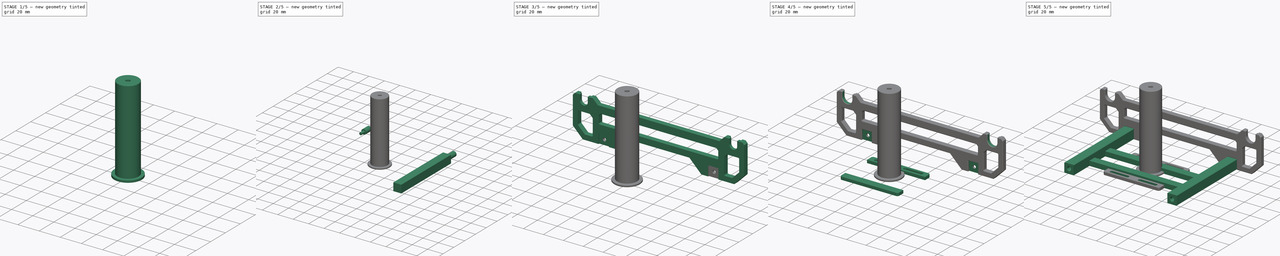
[diagram: build sequence overview — one tinted view per stage of 5, left to right]
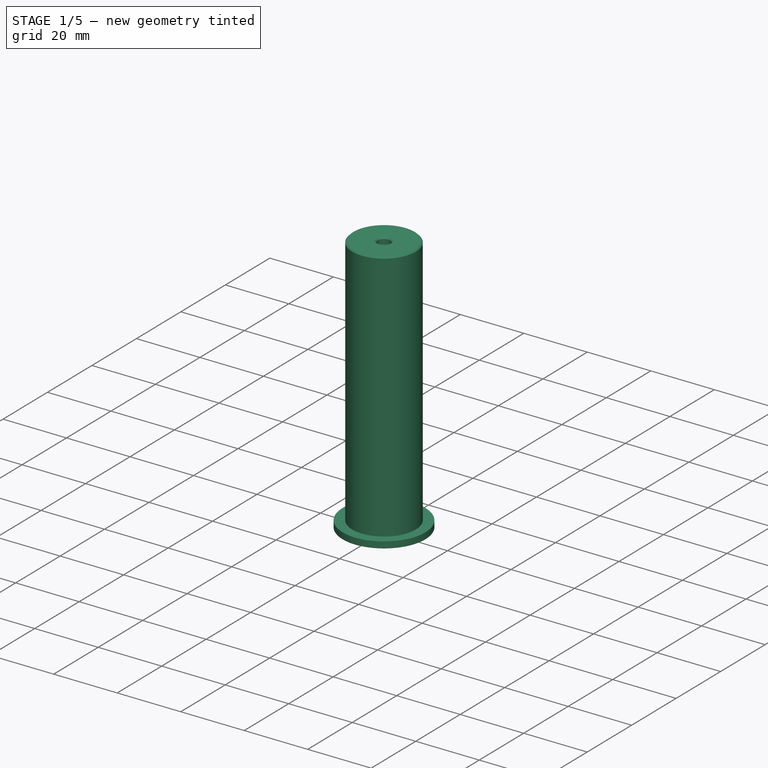
[diagram: stage 1 of 5 — iso view after this stage's code; geometry added in this stage tinted green]
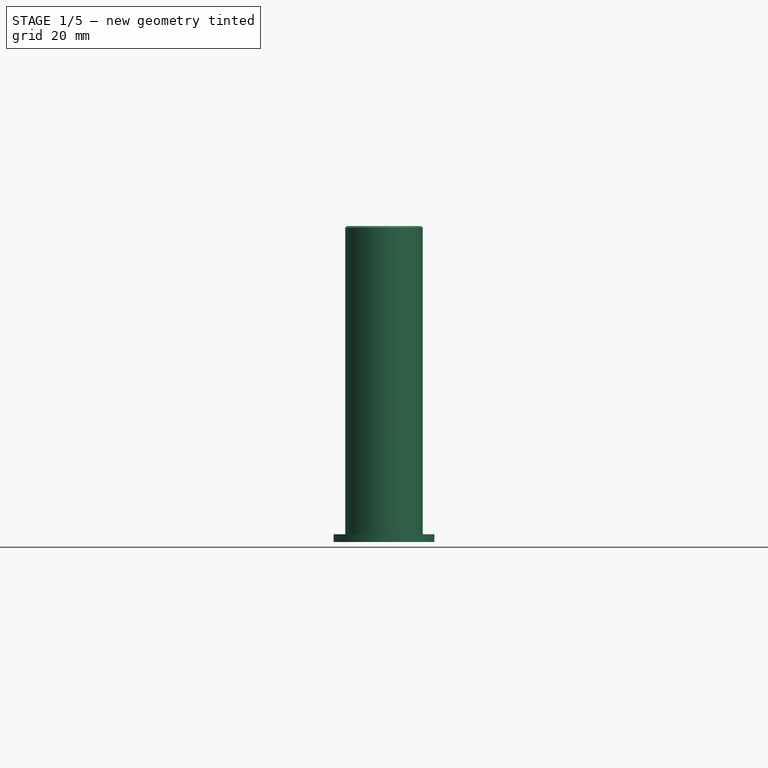
[diagram: stage 1 of 5 — front view after this stage's code; geometry added in this stage tinted green]
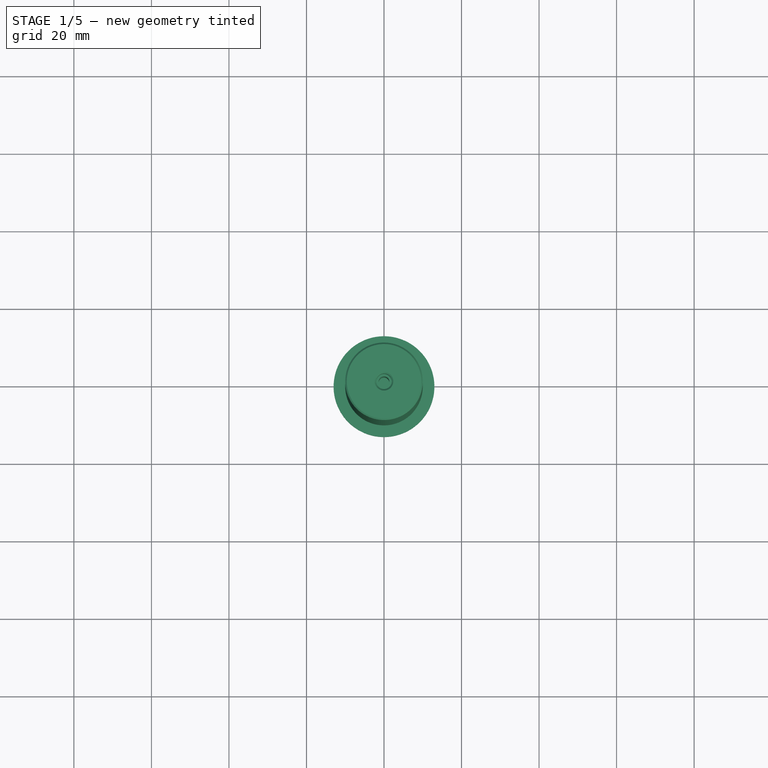
[diagram: stage 1 of 5 — top view after this stage's code; geometry added in this stage tinted green]
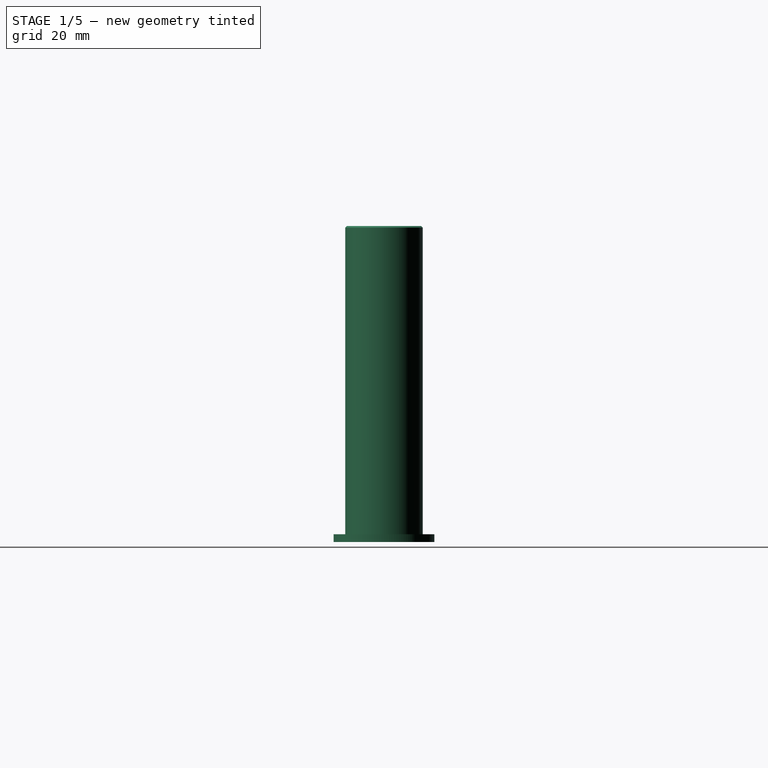
[diagram: stage 1 of 5 — right view after this stage's code; geometry added in this stage tinted green]
FCSTD DOCUMENT  (FreeCAD 0.19R24291 (Git))
Label: spool-holder
License: Other
LicenseURL: GPL3
objects: Part::Cylinder×19, Part::Cut×11, Part::Box×9, Part::MultiFuse×9, Part::Chamfer×6, Part::Feature×5, PartDesign::Pocket×4, Part::Fillet×3, PartDesign::FeatureBase×2, PartDesign::Pad×2, Sketcher::SketchObject×2, PartDesign::Body×2, Part::Refine×1
note: 81 computed .brp shape members not serialized (recipe doc carries the construction recipe); baked Part::Feature solids carry a one-line shape summary decoded from their .brp

FEATURE [Part::Cylinder] Cylinder014
  Angle = 360
  AttacherType = Attacher::AttachEngine3D
  Height = 2
  Radius = 13
FEATURE [Part::Cylinder] Cylinder015
  Angle = 360
  AttacherType = Attacher::AttachEngine3D
  Height = 3
  Radius = 3
FEATURE [Part::Cylinder] Cylinder016
  Angle = 360
  AttacherType = Attacher::AttachEngine3D
  Height = 10
  Radius = 1.65
FEATURE [Part::Cylinder] Cylinder017
  Angle = 360
  AttacherType = Attacher::AttachEngine3D
  Height = 81.5
  Radius = 10
FEATURE [Part::Cylinder] Cylinder018
  Angle = 360
  AttacherType = Attacher::AttachEngine3D
  Height = 27
  Radius = 1.4
FEATURE [Part::Cylinder] Cylinder019
  Angle = 360
  AttacherType = Attacher::AttachEngine3D
  Height = 27
  Placement = pos=(0,0,54.5) rot=(0,0,1;0rad)
  Radius = 1.4
FEATURE [Part::Cylinder] Cylinder020
  Angle = 360
  AttacherType = Attacher::AttachEngine3D
  Height = 8
  Radius = 2
FEATURE [Part::Cylinder] Cylinder021
  Angle = 360
  AttacherType = Attacher::AttachEngine3D
  Height = 8
  Placement = pos=(0,0,73.5) rot=(0,0,1;0rad)
  Radius = 2
FEATURE [Part::MultiFuse] Fusion006002011004053036004001028003005014018035002007006011
  Shapes = -> [Cylinder015,Cylinder014]
FEATURE [Part::Cut] Cut008004003004014002002005003004003002003021022001002001106
  Base = -> Fusion006002011004053036004001028003005014018035002007006011
  Tool = -> Cylinder016
FEATURE [Part::MultiFuse] Fusion006002011004053036004001028003005014018035002007006012
  Shapes = -> [Cylinder019,Cylinder018,Cylinder020,Cylinder021]
FEATURE [Part::Cut] Cut008004003004014002002005003004003002003021022001002001107
  Base = -> Cylinder017
  Tool = -> Fusion006002011004053036004001028003005014018035002007006012
FEATURE [Part::Chamfer] Chamfer004013007011015006009007001084  label="roller"
  Base = -> Cut008004003004014002002005003004003002003021022001002001107
  Edges = 4 edges r=0.4: [Edge1,Edge3,Edge4,Edge5]
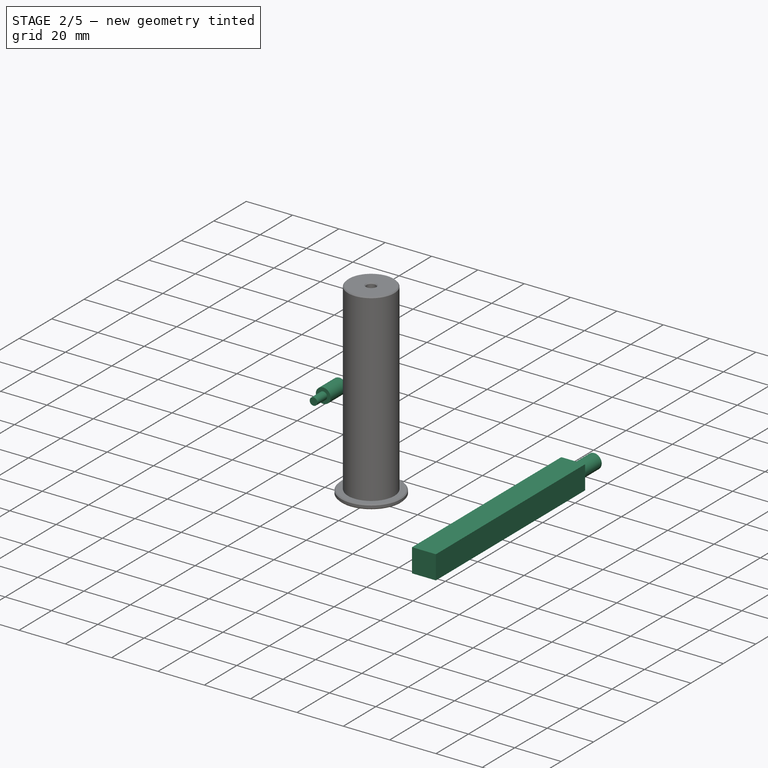
[diagram: stage 2 of 5 — iso view after this stage's code; geometry added in this stage tinted green]
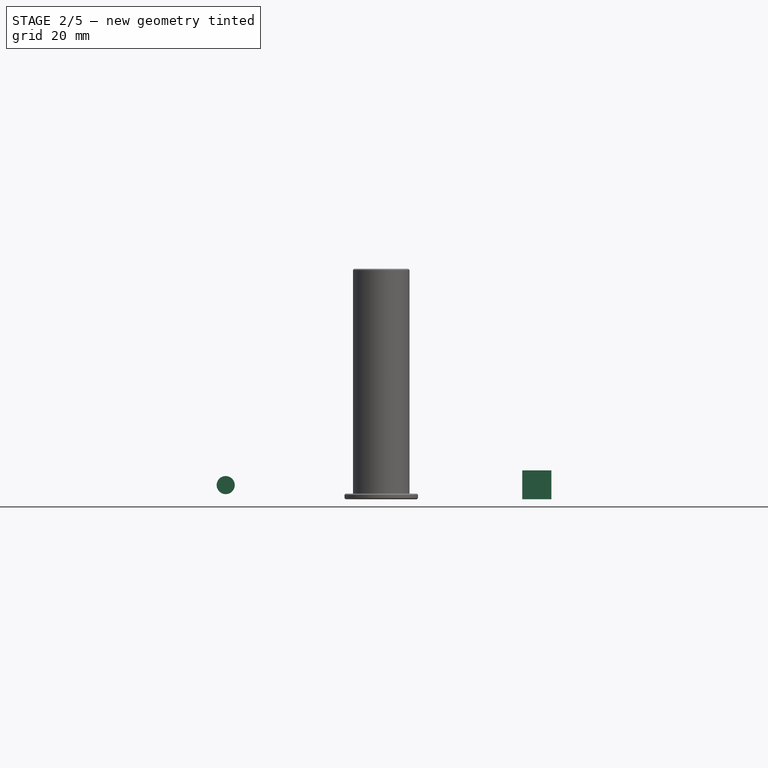
[diagram: stage 2 of 5 — front view after this stage's code; geometry added in this stage tinted green]
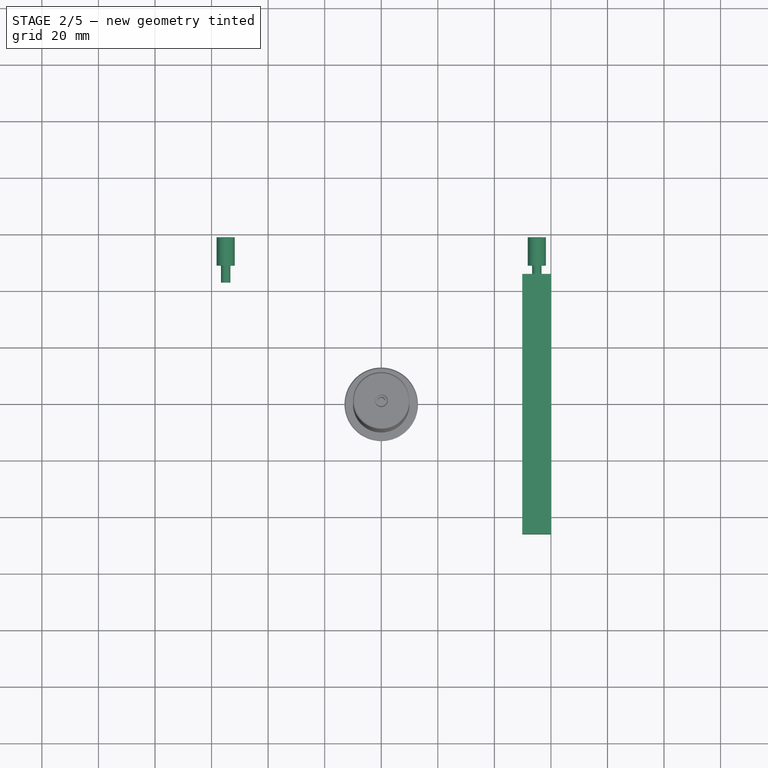
[diagram: stage 2 of 5 — top view after this stage's code; geometry added in this stage tinted green]
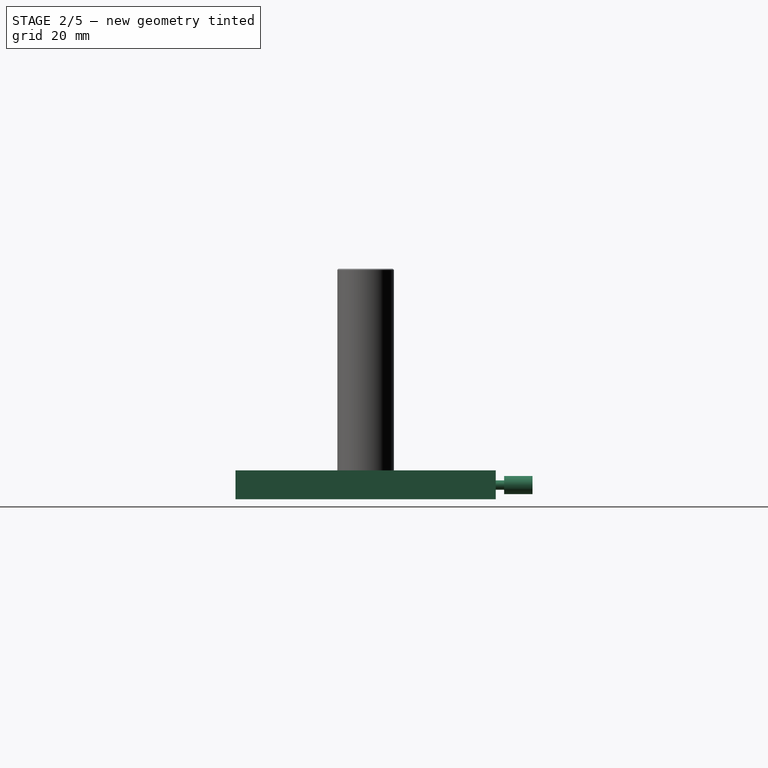
[diagram: stage 2 of 5 — right view after this stage's code; geometry added in this stage tinted green]
FEATURE [Part::Box] Box002  label="Cube002"
  AttacherType = Attacher::AttachEngine3D
  Height = 10.2
  Length = 10.3
  Placement = pos=(49.85,-46,0) rot=(0,0,1;0rad)
  Width = 92
FEATURE [Part::Cylinder] Cylinder006
  Angle = 360
  AttacherType = Attacher::AttachEngine3D
  Height = 10
  Placement = pos=(55,47,5) rot=(1,0,0;1.5708rad)
  Radius = 3.2
FEATURE [Part::Cylinder] Cylinder007
  Angle = 360
  AttacherType = Attacher::AttachEngine3D
  Height = 10
  Placement = pos=(-55,47,5) rot=(1,0,0;1.5708rad)
  Radius = 3.2
FEATURE [Part::Cylinder] Cylinder008
  Angle = 360
  AttacherType = Attacher::AttachEngine3D
  Height = 10
  Placement = pos=(-55,47,5) rot=(1,0,0;1.5708rad)
  Radius = 1.65
FEATURE [Part::Cylinder] Cylinder011
  Angle = 360
  AttacherType = Attacher::AttachEngine3D
  Height = 10
  Placement = pos=(55,47,5) rot=(1,0,0;1.5708rad)
  Radius = 1.65
FEATURE [Part::MultiFuse] Fusion006002011004053036004001028003005014018035002007003
  Placement = pos=(0,6,0) rot=(0,0,1;0rad)
  Shapes = -> [Cylinder008,Cylinder011]
FEATURE [Part::MultiFuse] Fusion006002011004053036004001028003005014018035002007004
  Placement = pos=(0,12,0) rot=(0,0,1;0rad)
  Shapes = -> [Cylinder007,Cylinder006]
FEATURE [Part::Cylinder] Cylinder022
  Angle = 360
  AttacherType = Attacher::AttachEngine3D
  Height = 1
  Radius = 5.75
FEATURE [Part::Cylinder] Cylinder023
  Angle = 360
  AttacherType = Attacher::AttachEngine3D
  Height = 4
  Radius = 5
FEATURE [Part::MultiFuse] Fusion006002011004053036004001028003005014018035002007006010
  Shapes = -> [Cylinder023,Cylinder022]
FEATURE [Part::Cylinder] Cylinder024
  Angle = 360
  AttacherType = Attacher::AttachEngine3D
  Height = 10
  Radius = 1.5
FEATURE [Part::Cut] Cut008004003004014002002005003004003002003021022001002001105  label="F623-bearing"
  Base = -> Fusion006002011004053036004001028003005014018035002007006010
  Tool = -> Cylinder024
FEATURE [Part::Chamfer] Chamfer004013007011015006009007001083  label="stopper"
  Base = -> Cut008004003004014002002005003004003002003021022001002001106
  Edges = 3 edges r=0.4: [Edge4,Edge7,Edge9]
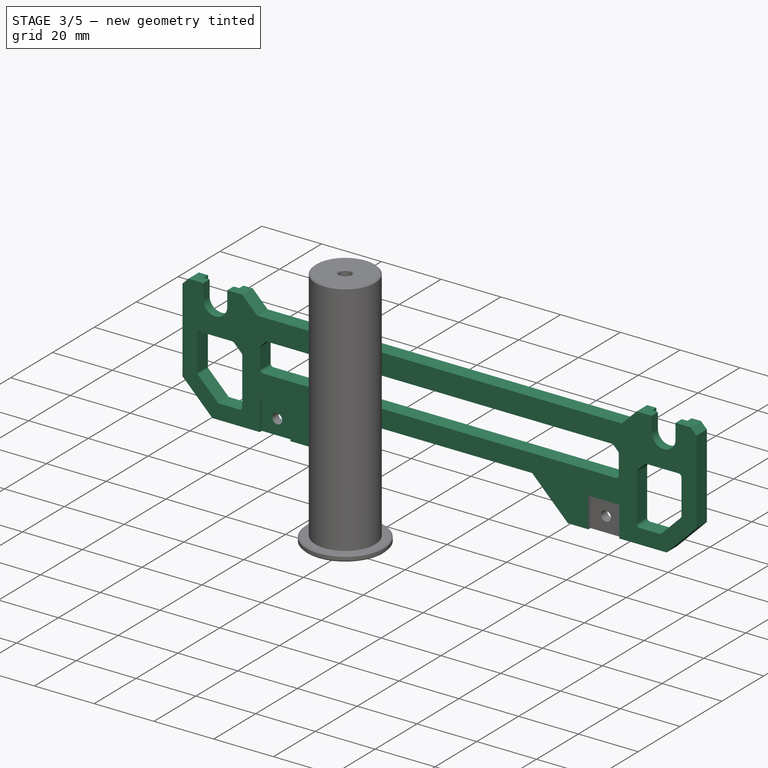
[diagram: stage 3 of 5 — iso view after this stage's code; geometry added in this stage tinted green]
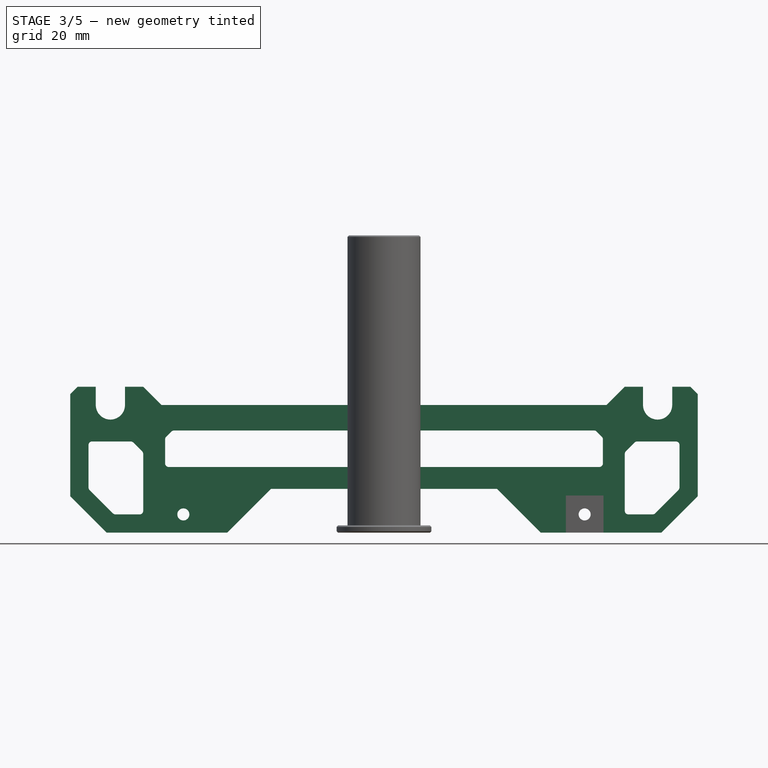
[diagram: stage 3 of 5 — front view after this stage's code; geometry added in this stage tinted green]
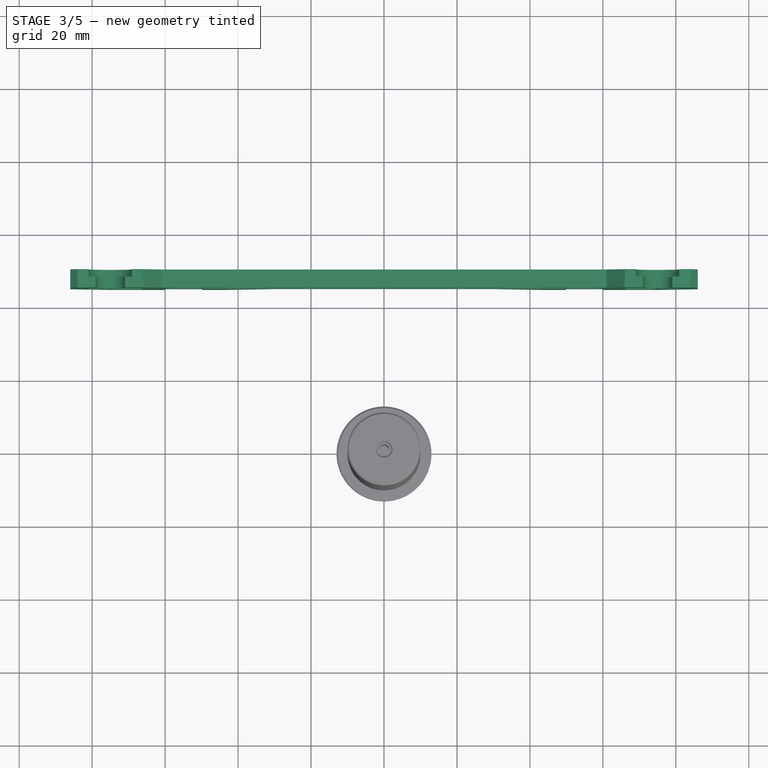
[diagram: stage 3 of 5 — top view after this stage's code; geometry added in this stage tinted green]
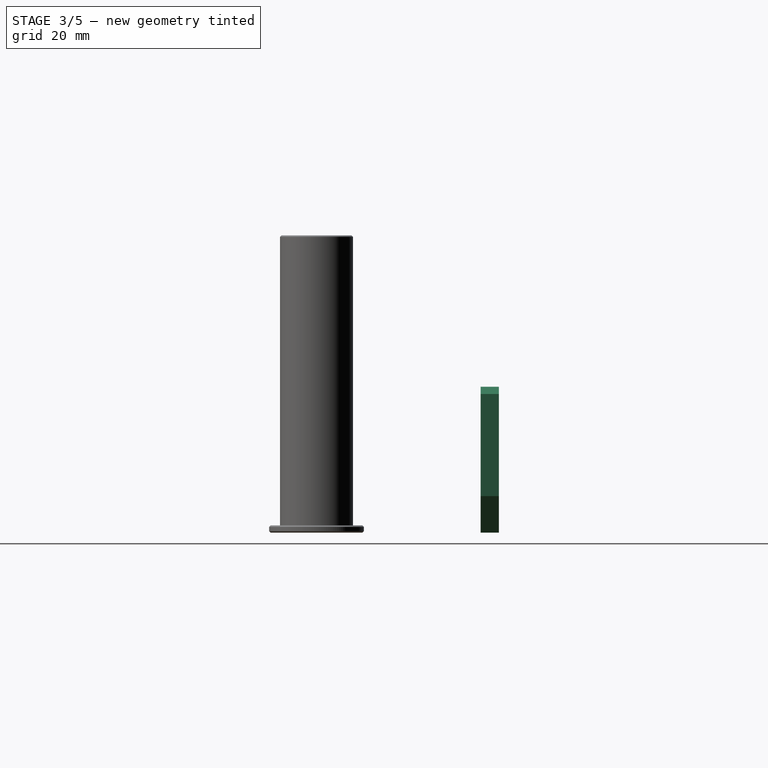
[diagram: stage 3 of 5 — right view after this stage's code; geometry added in this stage tinted green]
FEATURE [Part::Feature] Body001
  Placement = pos=(0,50,0) rot=(0,0,1;0rad)
  shape: bbox 172 x 5 x 40 mm, 30 faces (baked)
FEATURE [Part::Box] Box  label="Cube"
  AttacherType = Attacher::AttachEngine3D
  Height = 13
  Length = 86
  Placement = pos=(-43,42,-1) rot=(0,0,1;0rad)
  Width = 10
FEATURE [Part::Box] Box001  label="Cube001"
  AttacherType = Attacher::AttachEngine3D
  Height = 10.2
  Length = 10.3
  Placement = pos=(-60.15,-46,0) rot=(0,0,1;0rad)
  Width = 92
FEATURE [Part::Chamfer] Chamfer
  Base = -> Box
  Edges = 2 edges r=12: [Edge2,Edge6]
FEATURE [Part::Cut] Cut
  Base = -> Body001
  Tool = -> Chamfer
FEATURE [Part::MultiFuse] Fusion006002011004053036004001028003005014018035002007
  Shapes = -> [Box001,Box002]
FEATURE [Part::Cut] Cut008004003004014002002005003004003002003021022001002001091
  Base = -> Cut
  Tool = -> Fusion006002011004053036004001028003005014018035002007
FEATURE [Part::Cut] Cut008004003004014002002005003004003002003021022001002001094
  Base = -> Cut008004003004014002002005003004003002003021022001002001091
  Tool = -> Fusion006002011004053036004001028003005014018035002007003
FEATURE [Part::Cut] Cut008004003004014002002005003004003002003021022001002001096
  Base = -> Cut008004003004014002002005003004003002003021022001002001094
  Tool = -> Fusion006002011004053036004001028003005014018035002007004
FEATURE [Part::Feature] Fusion006002011004053036004001028003005014018035002007006001
  Placement = pos=(0,98,0) rot=(0,0,1;0rad)
  shape: bbox 162 x 10 x 23 mm, 42 faces, 3 solids (baked)
FEATURE [Part::Cut] Cut008004003004014002002005003004003002003021022001002001097
  Base = -> Cut008004003004014002002005003004003002003021022001002001096
  Tool = -> Fusion006002011004053036004001028003005014018035002007006001
FEATURE [PartDesign::FeatureBase] BaseFeature
  BaseFeature = -> Cut008004003004014002002005003004003002003021022001002001097
FEATURE [PartDesign::Pad] Pad
  BaseFeature = -> BaseFeature
  Direction = (1,1,1)
  Length = 3
  Length2 = 100
  Profile = -> BaseFeature [Face73]
  Type = 0
FEATURE [PartDesign::Pad] Pad001
  BaseFeature = -> Pad
  Direction = (1,1,1)
  Length = 3
  Length2 = 100
  Profile = -> Pad [Face80]
  Type = 0
FEATURE [Sketcher::SketchObject] Sketch
  FullyConstrained = true
  MapMode = 5
  Placement = pos=(0,50,-2.2e-14) rot=(0,0.707107,0.707107;3.14159rad)
  Support = -> [Pad001]
  sketch-geometry (8):
    g0: ArcOfCircle CenterX=-75 CenterY=35 CenterZ=0 NormalX=0 NormalY=0 NormalZ=1 AngleXU=0 Radius=5.9 StartAngle=3.14159 EndAngle=6.28319
    g1: ArcOfCircle CenterX=75 CenterY=35 CenterZ=0 NormalX=0 NormalY=0 NormalZ=1 AngleXU=0 Radius=5.9 StartAngle=3.14159 EndAngle=6.28319
    g2: LineSegment StartX=-80.9 StartY=35 StartZ=0 EndX=-80.9 EndY=40 EndZ=0
    g3: LineSegment StartX=-69.1 StartY=35 StartZ=0 EndX=-69.1 EndY=40 EndZ=0
    g4: LineSegment StartX=-80.9 StartY=40 StartZ=0 EndX=-69.1 EndY=40 EndZ=0
    g5: LineSegment StartX=69.1 StartY=35 StartZ=0 EndX=69.1 EndY=40 EndZ=0
    g6: LineSegment StartX=80.9 StartY=35 StartZ=0 EndX=80.9 EndY=40 EndZ=0
    g7: LineSegment StartX=69.1 StartY=40 StartZ=0 EndX=80.9 EndY=40 EndZ=0
  constraints (26):
    c: DistanceY(g1,g1) = 0
    c: DistanceY(g1,g1) = 0
    c: DistanceY(g0,g0) = 0
    c: DistanceY(g0,g0) = 0
    c: Radius(g0) = 5.9
    c: Radius(g1) = 5.9
    c: DistanceY(g-1,g0) = 35
    c: DistanceY(g-1,g1) = 35
    c: DistanceX(g-1,g1) = 75
    c: DistanceX(g0,g-1) = 75
    c: Coincident(g2,g0)
    c: Vertical(g2)
    c: Coincident(g3,g0)
    c: Vertical(g3)
    c: Coincident(g4,g2)
    c: Coincident(g4,g3)
    c: Horizontal(g4)
    c: Coincident(g5,g1)
    c: Vertical(g5)
    c: Coincident(g6,g1)
    c: Vertical(g6)
    c: Coincident(g7,g5)
    c: Coincident(g7,g6)
    c: Horizontal(g7)
    c: DistanceY(g6,g6) = 5
    c: DistanceY(g3,g3) = 5
FEATURE [PartDesign::Pocket] Pocket
  BaseFeature = -> Pad001
  Length = 2
  Length2 = 100
  Profile = -> Sketch
  Type = 0
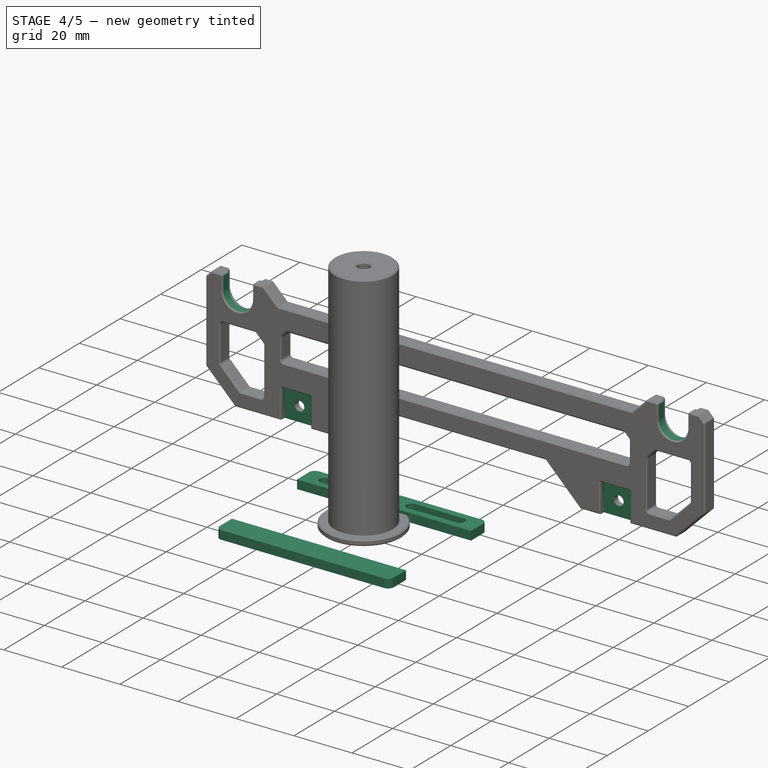
[diagram: stage 4 of 5 — iso view after this stage's code; geometry added in this stage tinted green]
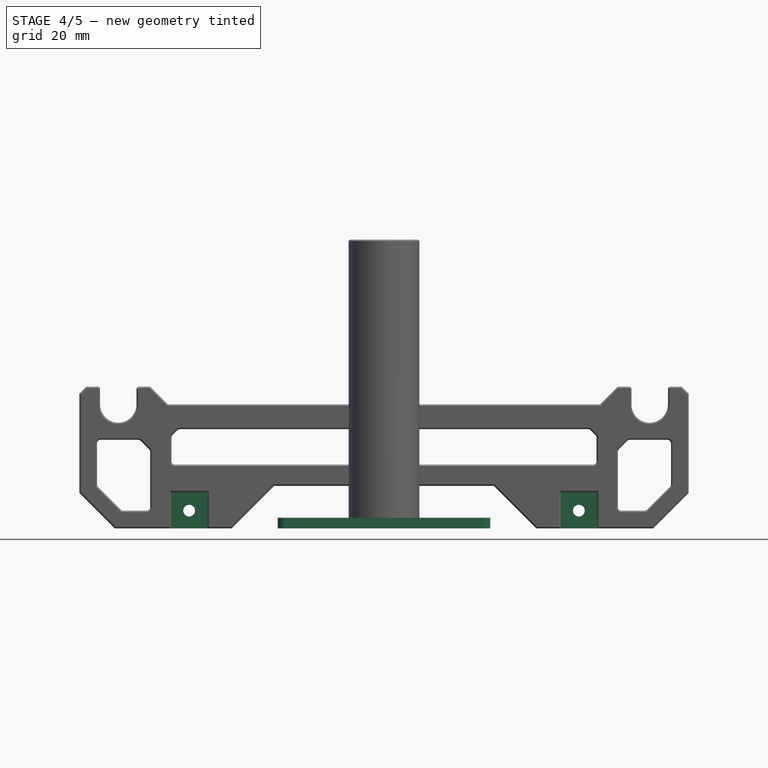
[diagram: stage 4 of 5 — front view after this stage's code; geometry added in this stage tinted green]
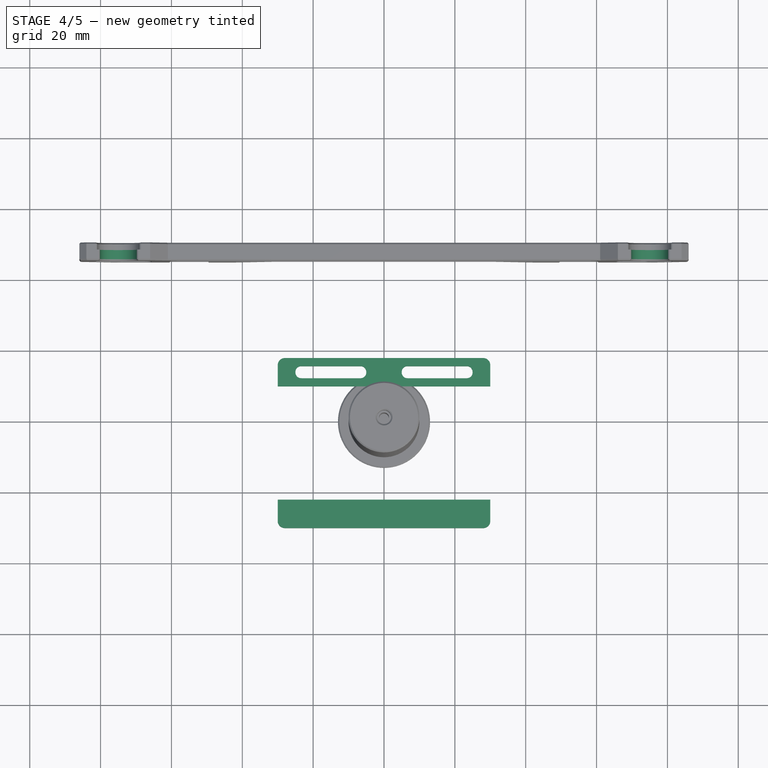
[diagram: stage 4 of 5 — top view after this stage's code; geometry added in this stage tinted green]
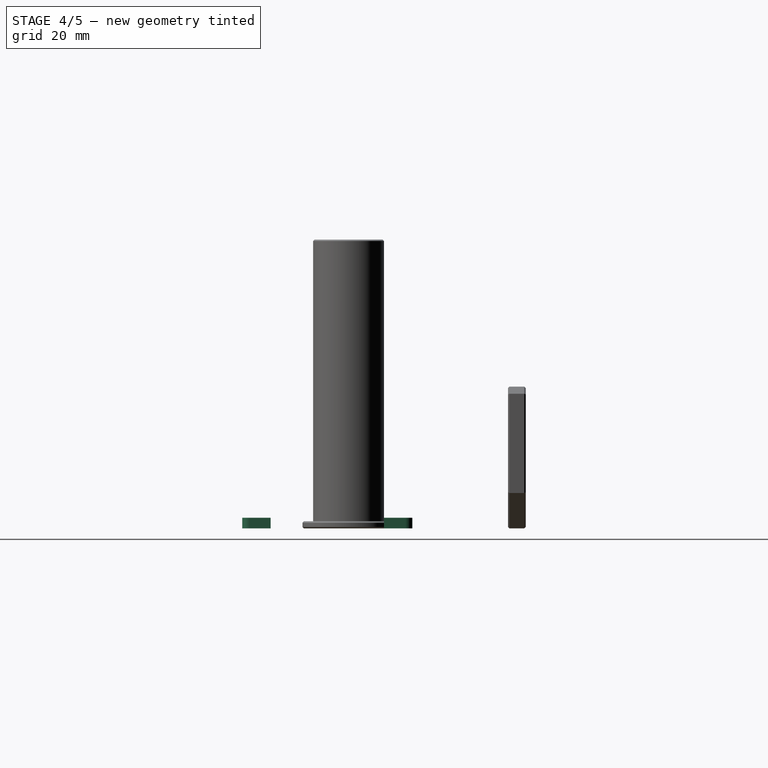
[diagram: stage 4 of 5 — right view after this stage's code; geometry added in this stage tinted green]
FEATURE [Part::Box] Box003  label="Cube003"
  AttacherType = Attacher::AttachEngine3D
  Height = 3
  Length = 60
  Placement = pos=(-30,10,0) rot=(0,0,1;0rad)
  Width = 8
FEATURE [Part::Box] Box004  label="Cube004"
  AttacherType = Attacher::AttachEngine3D
  Height = 3
  Length = 60
  Placement = pos=(-30,-30,0) rot=(0,0,1;0rad)
  Width = 8
FEATURE [Part::Feature] Fillet002
  Placement = pos=(-15,0,0) rot=(0,0,1;0rad)
  shape: bbox 20 x 3.4 x 10 mm, 10 faces (baked)
FEATURE [Part::Feature] Fillet003
  Placement = pos=(15,0,0) rot=(0,0,1;0rad)
  shape: bbox 20 x 3.4 x 10 mm, 10 faces (baked)
FEATURE [Part::MultiFuse] Fusion
  Placement = pos=(0,14,0) rot=(0,0,1;0rad)
  Shapes = -> [Fillet003,Fillet002]
FEATURE [Part::Fillet] Fillet
  Base = -> Box004
  Edges = 2 edges r=2: [Edge1,Edge5]
FEATURE [Part::Fillet] Fillet004
  Base = -> Box003
  Edges = 2 edges r=2: [Edge3,Edge7]
FEATURE [Part::Cut] Cut008004003004014002002005003004003002003021022001002001089
  Base = -> Fillet004
  Tool = -> Fusion
FEATURE [Sketcher::SketchObject] Sketch001
  FullyConstrained = true
  MapMode = 5
  Placement = pos=(0,45,-1.98e-14) rot=(1,0,0;1.5708rad)
  Support = -> [Pocket]
  sketch-geometry (8):
    g0: ArcOfCircle CenterX=-75 CenterY=35 CenterZ=0 NormalX=0 NormalY=0 NormalZ=1 AngleXU=0 Radius=5.15 StartAngle=3.14159 EndAngle=6.28319
    g1: ArcOfCircle CenterX=75 CenterY=35 CenterZ=0 NormalX=0 NormalY=0 NormalZ=1 AngleXU=0 Radius=5.15 StartAngle=3.14159 EndAngle=6.28319
    g2: LineSegment StartX=-80.15 StartY=35 StartZ=0 EndX=-80.15 EndY=40 EndZ=0
    g3: LineSegment StartX=-69.85 StartY=35 StartZ=0 EndX=-69.85 EndY=40 EndZ=0
    g4: LineSegment StartX=-69.85 StartY=40 StartZ=0 EndX=-80.15 EndY=40 EndZ=0
    g5: LineSegment StartX=69.85 StartY=35 StartZ=0 EndX=69.85 EndY=40 EndZ=0
    g6: LineSegment StartX=80.15 StartY=35 StartZ=0 EndX=80.15 EndY=40 EndZ=0
    g7: LineSegment StartX=69.85 StartY=40 StartZ=0 EndX=80.15 EndY=40 EndZ=0
  constraints (26):
    c: DistanceY(g0,g0) = 0
    c: DistanceY(g0,g0) = 0
    c: DistanceY(g1,g1) = 0
    c: DistanceY(g1,g1) = 0
    c: Radius(g1) = 5.15
    c: Radius(g0) = 5.15
    c: DistanceX(g0,g-1) = 75
    c: DistanceX(g-1,g1) = 75
    c: DistanceY(g-1,g1) = 35
    c: DistanceY(g-1,g0) = 35
    c: Coincident(g2,g0)
    c: Vertical(g2)
    c: Coincident(g3,g0)
    c: Vertical(g3)
    c: Coincident(g4,g3)
    c: Coincident(g4,g2)
    c: Horizontal(g4)
    c: Coincident(g5,g1)
    c: Vertical(g5)
    c: Coincident(g6,g1)
    c: Vertical(g6)
    c: Coincident(g7,g5)
    c: Coincident(g7,g6)
    c: Horizontal(g7)
    c: DistanceY(g5,g5) = 5
    c: DistanceY(g3,g3) = 5
FEATURE [PartDesign::Pocket] Pocket001
  BaseFeature = -> Pocket
  Length = 3
  Length2 = 100
  Profile = -> Sketch001
  Type = 0
FEATURE [PartDesign::Body] Body
  BaseFeature = -> Cut008004003004014002002005003004003002003021022001002001097
  Group = -> [BaseFeature,Pad,Pad001,Sketch,Pocket,Sketch001,Pocket001]
  Origin = -> Origin
  Tip = -> Pocket001
FEATURE [Part::Refine] Pocket001001
  Source = -> Pocket001
FEATURE [Part::Fillet] Fillet006003
  Base = -> Pocket001001
  Edges = 8 edges r=0.7: [Edge67,Edge77,Edge80,Edge82,Edge121,Edge125,Edge229,Edge233]
FEATURE [Part::Chamfer] Chamfer004013007011015006009007001078  label="plate"
  Base = -> Fillet006003
  Edges = 66 edges r=0.4: [Edge1,Edge2,Edge3,Edge4,Edge5,Edge6,Edge7,Edge8,Edge9,Edge10,Edge11,Edge12,Edge13,Edge14,Edge15,Edge16,Edge17,Edge18,Edge19,Edge20,Edge21,Edge22,Edge23,Edge24,Edge25,Edge26,Edge27,Edge28,Edge29,Edge30,Edge31,Edge32,Edge33,Edge34,Edge35,Edge36,Edge37,Edge38,Edge39,Edge40,Edge41,Edge42,Edge43,Edge44,+22 more]
FEATURE [PartDesign::FeatureBase] BaseFeature001
  BaseFeature = -> Chamfer004013007011015006009007001078
FEATURE [PartDesign::Pocket] Pocket001002
  BaseFeature = -> BaseFeature001
  Length = 1
  Length2 = 100
  Profile = -> BaseFeature001 [Face142]
  Type = 0
FEATURE [PartDesign::Pocket] Pocket001003
  BaseFeature = -> Pocket001002
  Length = 1
  Length2 = 100
  Profile = -> Pocket001002 [Face141]
  Type = 0
FEATURE [PartDesign::Body] Body002
  BaseFeature = -> Chamfer004013007011015006009007001078
  Group = -> [BaseFeature001,Pocket001002,Pocket001003]
  Origin = -> Origin001
  Tip = -> Pocket001003
FEATURE [Part::Chamfer] Chamfer004013007011015006009007001081  label="plate-r1"
  Base = -> Pocket001003
  Edges = 72 edges r=0.4: [Edge203,Edge205,Edge207,Edge210,Edge212,Edge229,Edge231,Edge233,Edge235,Edge237,Edge243,Edge246,Edge248,Edge249,Edge251,Edge257,Edge260,Edge262,Edge264,Edge265,Edge283,Edge284,Edge286,Edge288,Edge291,Edge292,Edge295,Edge297,Edge299,Edge301,Edge302,Edge304,Edge308,Edge310,Edge312,Edge315,Edge316,+35 more]
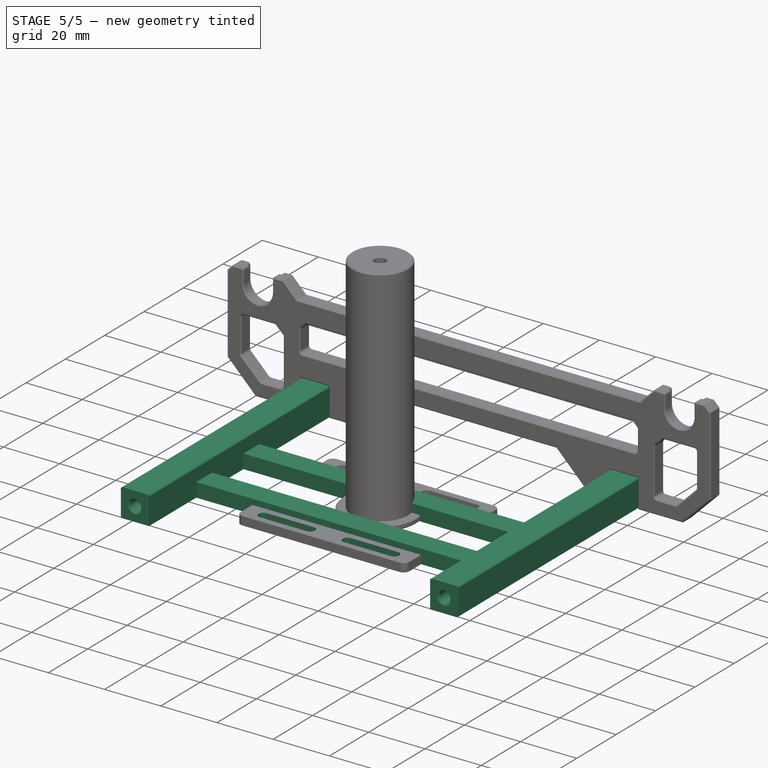
[diagram: stage 5 of 5 — iso view after this stage's code; geometry added in this stage tinted green]
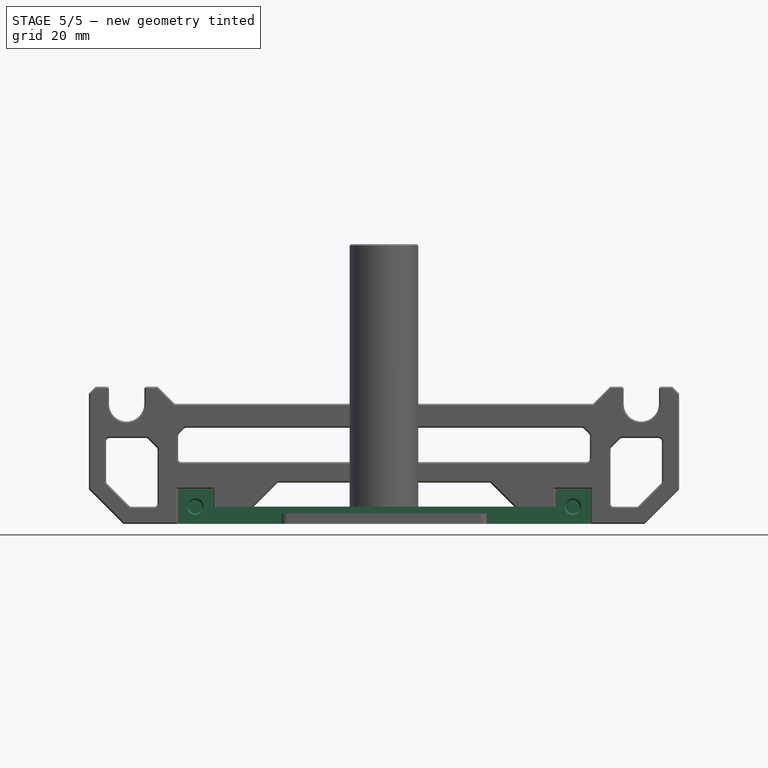
[diagram: stage 5 of 5 — front view after this stage's code; geometry added in this stage tinted green]
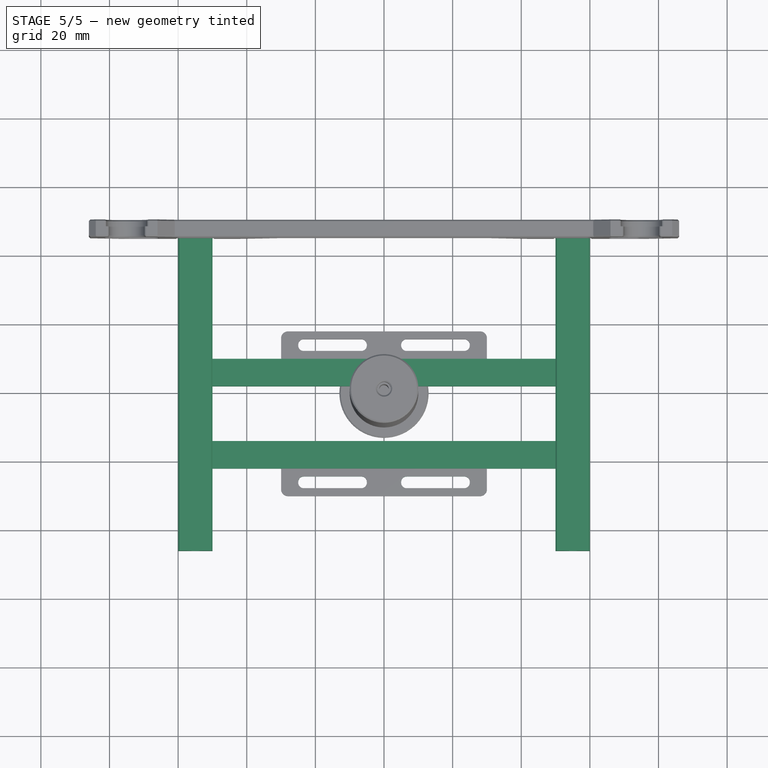
[diagram: stage 5 of 5 — top view after this stage's code; geometry added in this stage tinted green]
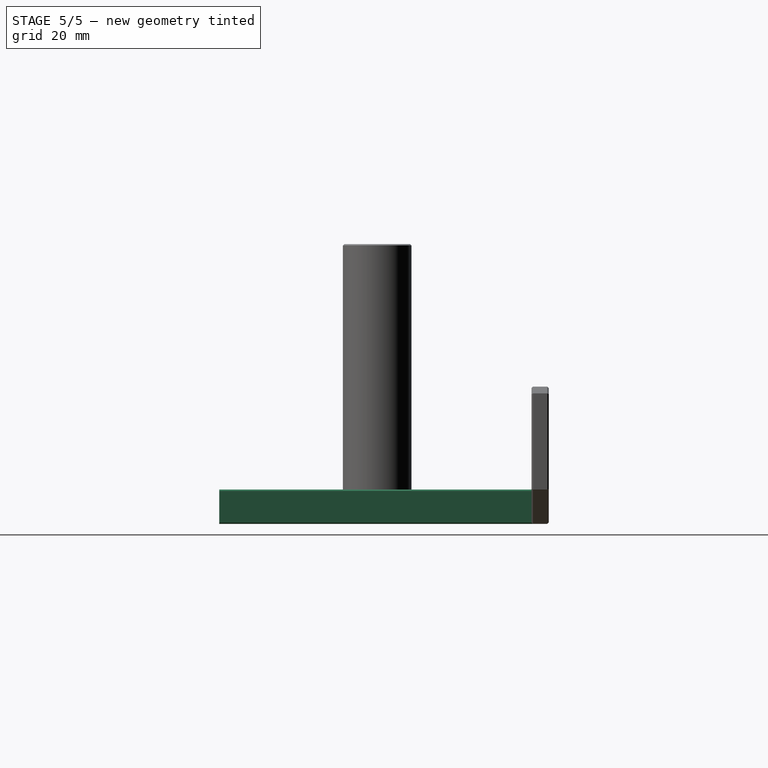
[diagram: stage 5 of 5 — right view after this stage's code; geometry added in this stage tinted green]
FEATURE [Part::Feature] Fusion006002011004053036004001028003005014018035002003
  Placement = pos=(0,-26,0) rot=(0,0,1;0rad)
  shape: bbox 50 x 3.4 x 10 mm, 20 faces, 2 solids (baked)
FEATURE [Part::Box] Box005  label="Cube005"
  AttacherType = Attacher::AttachEngine3D
  Height = 10
  Length = 10
  Placement = pos=(50,-46,0) rot=(0,0,1;0rad)
  Width = 92
FEATURE [Part::Box] Box006  label="Cube006"
  AttacherType = Attacher::AttachEngine3D
  Height = 10
  Length = 10
  Placement = pos=(-60,-46,0) rot=(0,0,1;0rad)
  Width = 92
FEATURE [Part::Cylinder] Cylinder
  Angle = 360
  AttacherType = Attacher::AttachEngine3D
  Height = 10
  Placement = pos=(-55,-37,5) rot=(1,0,0;1.5708rad)
  Radius = 2
FEATURE [Part::Cylinder] Cylinder001
  Angle = 360
  AttacherType = Attacher::AttachEngine3D
  Height = 10
  Placement = pos=(55,-37,5) rot=(1,0,0;1.5708rad)
  Radius = 2
FEATURE [Part::Cylinder] Cylinder002
  Angle = 360
  AttacherType = Attacher::AttachEngine3D
  Height = 10
  Placement = pos=(55,47,5) rot=(1,0,0;1.5708rad)
  Radius = 2
FEATURE [Part::Cylinder] Cylinder003
  Angle = 360
  AttacherType = Attacher::AttachEngine3D
  Height = 10
  Placement = pos=(-55,47,5) rot=(1,0,0;1.5708rad)
  Radius = 2
FEATURE [Part::MultiFuse] Fusion006002011004053036004001028003005014018035002005
  Shapes = -> [Cylinder003,Cylinder002,Cylinder001,Cylinder]
FEATURE [Part::Box] Box007  label="Cube007"
  AttacherType = Attacher::AttachEngine3D
  Height = 5
  Length = 102
  Placement = pos=(-51,2,0) rot=(0,0,1;0rad)
  Width = 8
FEATURE [Part::Box] Box008  label="Cube008"
  AttacherType = Attacher::AttachEngine3D
  Height = 5
  Length = 102
  Placement = pos=(-51,-22,0) rot=(0,0,1;0rad)
  Width = 8
FEATURE [Part::Cut] Cut008004003004014002002005003004003002003021022001002001088
  Base = -> Fillet
  Tool = -> Fusion006002011004053036004001028003005014018035002003
FEATURE [Part::MultiFuse] Fusion006002011004053036004001028003005014018035002006
  Shapes = -> [Cut008004003004014002002005003004003002003021022001002001089,Cut008004003004014002002005003004003002003021022001002001088,Box008,Box007,Box006,Box005]
FEATURE [Part::Cut] Cut008004003004014002002005003004003002003021022001002001090
  Base = -> Fusion006002011004053036004001028003005014018035002006
  Tool = -> Fusion006002011004053036004001028003005014018035002005
FEATURE [Part::Chamfer] Chamfer004013007011015006009007001065  label="ladder"
  Base = -> Cut008004003004014002002005003004003002003021022001002001090
  Edges = 10 edges r=0.4: [Edge13,Edge22,Edge23,Edge34,Edge35,Edge85,Edge95,Edge183,Edge186,Edge188]
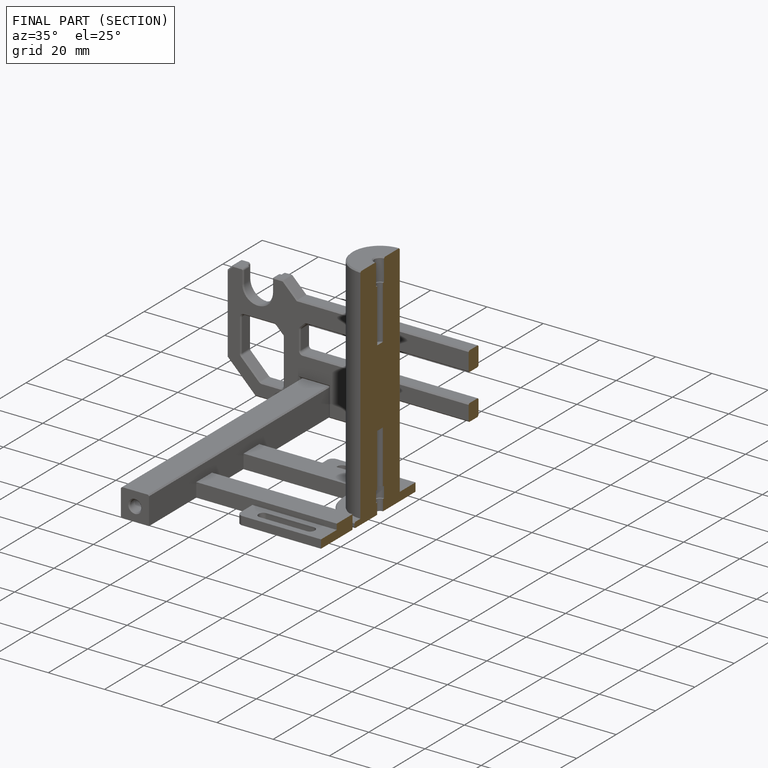
[diagram: finished part — half-section view (interior)]
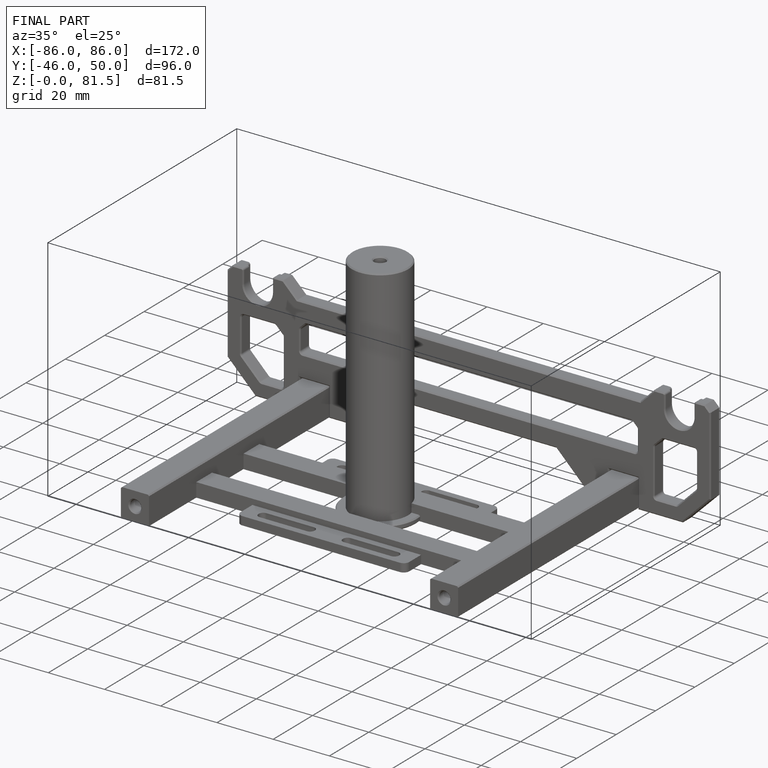
[diagram: finished part — iso view with bounding-box wireframe]
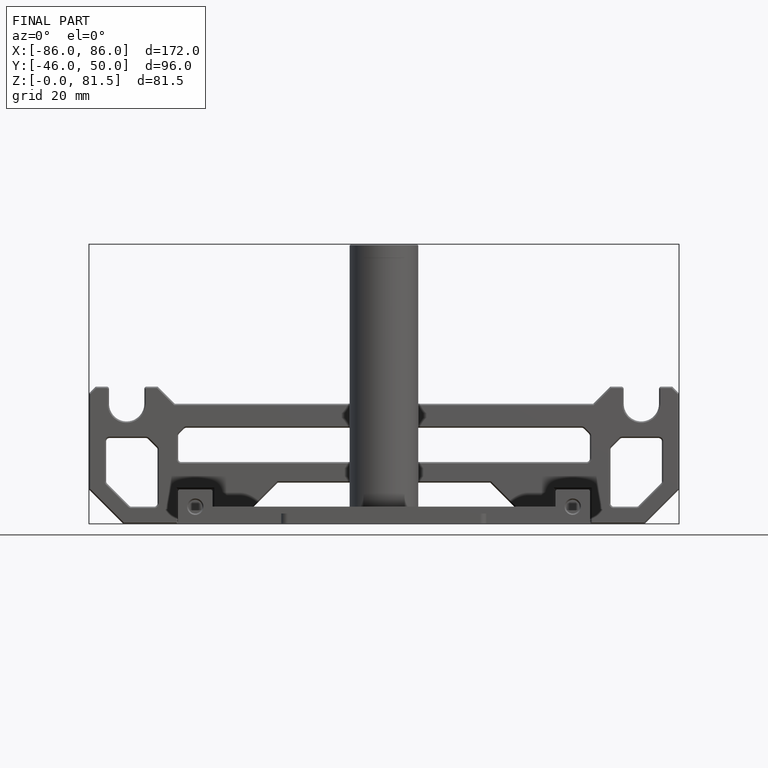
[diagram: finished part — front view with bounding-box wireframe]
